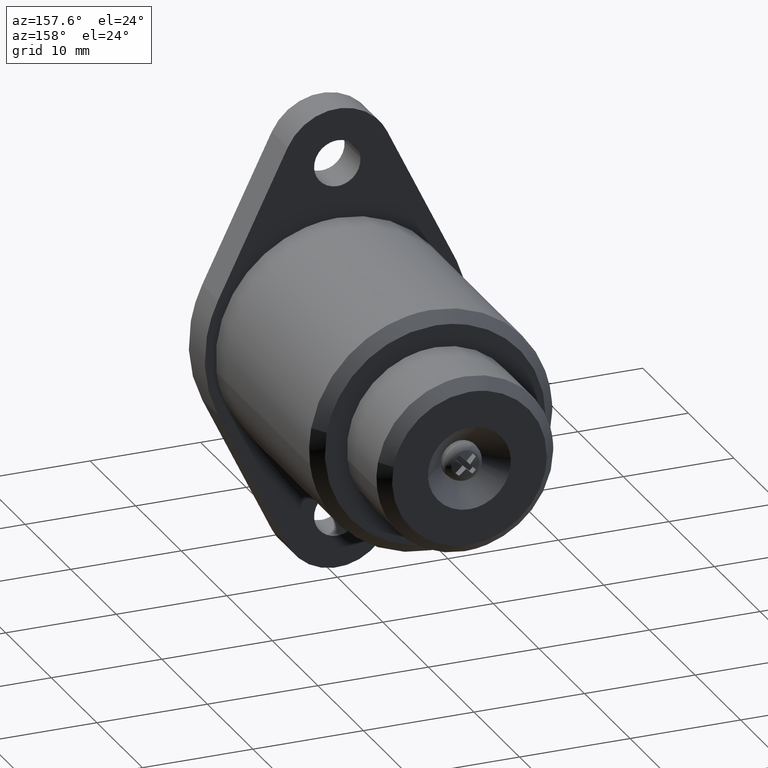
[diagram: clean part render]
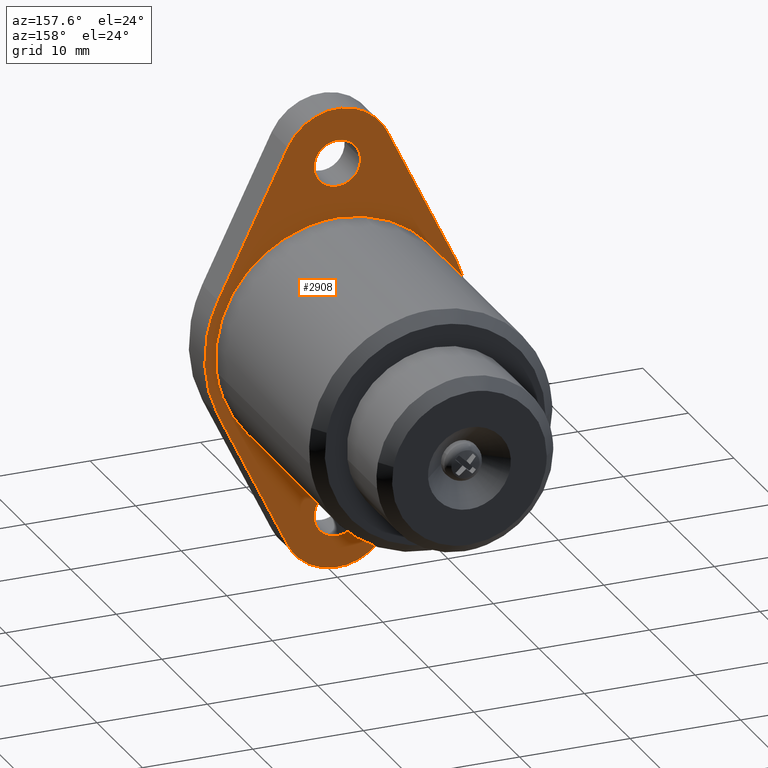
[diagram: same view with one face highlighted and labeled with its STEP entity id]
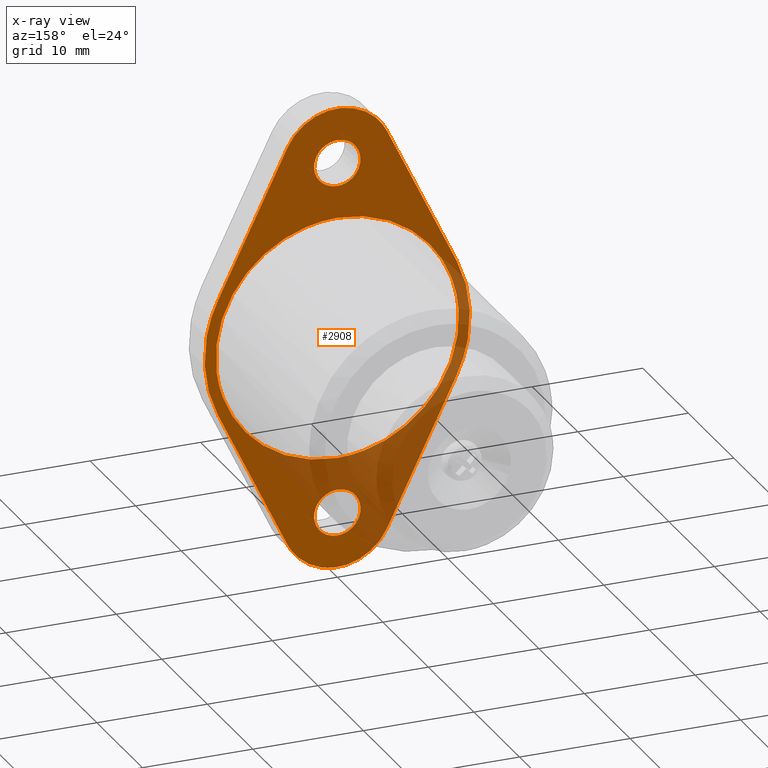
[diagram: x-ray of the same camera — body ghosted, the highlighted face saturated]
A machine part, auxiliary view. The second image highlights one B-rep face of the part: STEP entity #2908.
The next image is the same camera in x-ray: the body ghosted, the highlighted face saturated — about 30% of this face is hidden behind the body in this view.
In plain terms, the highlighted face is a freeform B-spline surface patch.
Its self-contained STEP definition (entity closure, byte-faithful):
#973=CARTESIAN_POINT('',(0.0,0.0,13.900010474177201));
#974=VERTEX_POINT('',#973);
#975=CARTESIAN_POINT('',(2.093526400831510,1.942890E-016,15.835246373046340));
#976=VERTEX_POINT('',#975);
#977=CARTESIAN_POINT('',(0.0,0.0,13.900010474177201));
#978=CARTESIAN_POINT('',(1.941220032291775,0.0,13.900010474177209));
#979=CARTESIAN_POINT('',(2.093526400831510,1.942890E-016,15.835246373046340));
#987=(BOUNDED_CURVE()B_SPLINE_CURVE(2,(#977,#978,#979),.UNSPECIFIED.,.F.,.U.)B_SPLINE_CURVE_WITH_KNOTS((3,3),(0.0,0.236331300616000),.UNSPECIFIED.)CURVE()GEOMETRIC_REPRESENTATION_ITEM()RATIONAL_B_SPLINE_CURVE((1.0,0.723120658624841,0.969723356136823))REPRESENTATION_ITEM(''));
#988=EDGE_CURVE('',#974,#976,#987,.T.);
#990=CARTESIAN_POINT('',(-2.093526400831510,1.942890E-016,16.164774575308059));
#991=VERTEX_POINT('',#990);
#992=CARTESIAN_POINT('',(-2.093526400831511,1.942890E-016,16.164774575308059));
#993=CARTESIAN_POINT('',(-2.100000000000000,0.0,16.082519698996162));
#994=CARTESIAN_POINT('',(-2.100000000000000,0.0,16.000010474177198));
#995=CARTESIAN_POINT('',(-2.100000000000000,0.0,13.900010474177201));
#996=CARTESIAN_POINT('',(0.0,0.0,13.900010474177201));
#1004=(BOUNDED_CURVE()B_SPLINE_CURVE(2,(#992,#993,#994,#995,#996),.UNSPECIFIED.,.F.,.U.)B_SPLINE_CURVE_WITH_KNOTS((3,2,3),(0.736331300616000,0.750000000000000,1.0),.UNSPECIFIED.)CURVE()GEOMETRIC_REPRESENTATION_ITEM()RATIONAL_B_SPLINE_CURVE((0.969723356136824,0.983986122561707,1.0,0.707106781186548,1.0))REPRESENTATION_ITEM(''));
#1005=EDGE_CURVE('',#991,#974,#1004,.T.);
#1072=CARTESIAN_POINT('',(0.0,0.0,18.100010474177200));
#1073=VERTEX_POINT('',#1072);
#1074=CARTESIAN_POINT('',(2.093526400831511,1.942890E-016,15.835246373046337));
#1075=CARTESIAN_POINT('',(2.100000000000000,0.0,15.917501249358232));
#1076=CARTESIAN_POINT('',(2.100000000000000,0.0,16.000010474177198));
#1077=CARTESIAN_POINT('',(2.100000000000000,0.0,18.100010474177203));
#1078=CARTESIAN_POINT('',(0.0,0.0,18.100010474177200));
#1086=(BOUNDED_CURVE()B_SPLINE_CURVE(2,(#1074,#1075,#1076,#1077,#1078),.UNSPECIFIED.,.F.,.U.)B_SPLINE_CURVE_WITH_KNOTS((3,2,3),(0.236331300616000,0.250000000000000,0.500000000000000),.UNSPECIFIED.)CURVE()GEOMETRIC_REPRESENTATION_ITEM()RATIONAL_B_SPLINE_CURVE((0.969723356136824,0.983986122561707,1.0,0.707106781186548,1.0))REPRESENTATION_ITEM(''));
#1087=EDGE_CURVE('',#976,#1073,#1086,.T.);
#1121=CARTESIAN_POINT('',(0.0,0.0,18.100010474177200));
#1122=CARTESIAN_POINT('',(-1.941220032291773,0.0,18.100010474177203));
#1123=CARTESIAN_POINT('',(-2.093526400831511,1.942890E-016,16.164774575308059));
#1131=(BOUNDED_CURVE()B_SPLINE_CURVE(2,(#1121,#1122,#1123),.UNSPECIFIED.,.F.,.U.)B_SPLINE_CURVE_WITH_KNOTS((3,3),(0.500000000000000,0.736331300616000),.UNSPECIFIED.)CURVE()GEOMETRIC_REPRESENTATION_ITEM()RATIONAL_B_SPLINE_CURVE((1.0,0.723120658624841,0.969723356136823))REPRESENTATION_ITEM(''));
#1132=EDGE_CURVE('',#1073,#991,#1131,.T.);
#1155=CARTESIAN_POINT('',(0.0,0.0,-18.099989525822998));
#1156=VERTEX_POINT('',#1155);
#1157=CARTESIAN_POINT('',(2.093526400831510,1.942890E-016,-16.164753626953861));
#1158=VERTEX_POINT('',#1157);
#1159=CARTESIAN_POINT('',(0.0,0.0,-18.099989525822998));
#1160=CARTESIAN_POINT('',(1.941220032291773,0.0,-18.099989525822998));
#1161=CARTESIAN_POINT('',(2.093526400831511,1.942890E-016,-16.164753626953857));
#1169=(BOUNDED_CURVE()B_SPLINE_CURVE(2,(#1159,#1160,#1161),.UNSPECIFIED.,.F.,.U.)B_SPLINE_CURVE_WITH_KNOTS((3,3),(0.0,0.236331300616000),.UNSPECIFIED.)CURVE()GEOMETRIC_REPRESENTATION_ITEM()RATIONAL_B_SPLINE_CURVE((1.0,0.723120658624841,0.969723356136823))REPRESENTATION_ITEM(''));
#1170=EDGE_CURVE('',#1156,#1158,#1169,.T.);
#1172=CARTESIAN_POINT('',(-2.093526400831510,1.942890E-016,-15.835225424692140));
#1173=VERTEX_POINT('',#1172);
#1174=CARTESIAN_POINT('',(-2.093526400831511,1.942890E-016,-15.835225424692139));
#1175=CARTESIAN_POINT('',(-2.100000000000000,0.0,-15.917480301004035));
#1176=CARTESIAN_POINT('',(-2.100000000000000,0.0,-15.999989525823000));
#1177=CARTESIAN_POINT('',(-2.100000000000000,0.0,-18.099989525823005));
#1178=CARTESIAN_POINT('',(0.0,0.0,-18.099989525822998));
#1186=(BOUNDED_CURVE()B_SPLINE_CURVE(2,(#1174,#1175,#1176,#1177,#1178),.UNSPECIFIED.,.F.,.U.)B_SPLINE_CURVE_WITH_KNOTS((3,2,3),(0.736331300616000,0.750000000000000,1.0),.UNSPECIFIED.)CURVE()GEOMETRIC_REPRESENTATION_ITEM()RATIONAL_B_SPLINE_CURVE((0.969723356136824,0.983986122561707,1.0,0.707106781186548,1.0))REPRESENTATION_ITEM(''));
#1187=EDGE_CURVE('',#1173,#1156,#1186,.T.);
#1254=CARTESIAN_POINT('',(0.0,0.0,-13.899989525823001));
#1255=VERTEX_POINT('',#1254);
#1256=CARTESIAN_POINT('',(2.093526400831511,1.942890E-016,-16.164753626953857));
#1257=CARTESIAN_POINT('',(2.100000000000000,0.0,-16.082498750641967));
#1258=CARTESIAN_POINT('',(2.100000000000000,0.0,-15.999989525823000));
#1259=CARTESIAN_POINT('',(2.100000000000000,0.0,-13.899989525822999));
#1260=CARTESIAN_POINT('',(0.0,0.0,-13.899989525823001));
#1268=(BOUNDED_CURVE()B_SPLINE_CURVE(2,(#1256,#1257,#1258,#1259,#1260),.UNSPECIFIED.,.F.,.U.)B_SPLINE_CURVE_WITH_KNOTS((3,2,3),(0.236331300616000,0.250000000000000,0.500000000000000),.UNSPECIFIED.)CURVE()GEOMETRIC_REPRESENTATION_ITEM()RATIONAL_B_SPLINE_CURVE((0.969723356136823,0.983986122561707,1.0,0.707106781186548,1.0))REPRESENTATION_ITEM(''));
#1269=EDGE_CURVE('',#1158,#1255,#1268,.T.);
#1303=CARTESIAN_POINT('',(0.0,0.0,-13.899989525823001));
#1304=CARTESIAN_POINT('',(-1.941220032291773,0.0,-13.899989525823003));
#1305=CARTESIAN_POINT('',(-2.093526400831511,1.942890E-016,-15.835225424692135));
#1313=(BOUNDED_CURVE()B_SPLINE_CURVE(2,(#1303,#1304,#1305),.UNSPECIFIED.,.F.,.U.)B_SPLINE_CURVE_WITH_KNOTS((3,3),(0.500000000000000,0.736331300616000),.UNSPECIFIED.)CURVE()GEOMETRIC_REPRESENTATION_ITEM()RATIONAL_B_SPLINE_CURVE((1.0,0.723120658624841,0.969723356136823))REPRESENTATION_ITEM(''));
#1314=EDGE_CURVE('',#1255,#1173,#1313,.T.);
#1905=CARTESIAN_POINT('',(10.923088550968760,-2.402156E-014,-1.298350099039061));
#1906=VERTEX_POINT('',#1905);
#1907=CARTESIAN_POINT('',(-0.000018141802190,0.0,11.000010474177200));
#1908=VERTEX_POINT('',#1907);
#1909=CARTESIAN_POINT('',(10.923088550968760,-2.402156E-014,-1.298350099039061));
#1910=CARTESIAN_POINT('',(10.999981858197811,0.0,-0.651446753374219));
#1911=CARTESIAN_POINT('',(10.999981858197810,0.0,0.000010474177202));
#1912=CARTESIAN_POINT('',(10.999981858197808,0.0,11.000010474177202));
#1913=CARTESIAN_POINT('',(-0.000018141802190,0.0,11.000010474177200));
#1921=(BOUNDED_CURVE()B_SPLINE_CURVE(2,(#1909,#1910,#1911,#1912,#1913),.UNSPECIFIED.,.F.,.U.)B_SPLINE_CURVE_WITH_KNOTS((3,2,3),(0.729562721192991,0.750000000000000,1.0),.UNSPECIFIED.)CURVE()GEOMETRIC_REPRESENTATION_ITEM()RATIONAL_B_SPLINE_CURVE((0.956027239646196,0.976056238505709,1.0,0.707106781186548,1.0))REPRESENTATION_ITEM(''));
#1922=EDGE_CURVE('',#1906,#1908,#1921,.T.);
#1932=CARTESIAN_POINT('',(-10.979501933485819,-3.114176E-014,0.671527910945007));
#1933=VERTEX_POINT('',#1932);
#1939=CARTESIAN_POINT('',(-0.000018141802190,0.0,11.000010474177200));
#1940=CARTESIAN_POINT('',(-10.347800455709654,0.0,11.000010474177202));
#1941=CARTESIAN_POINT('',(-10.979501933485821,-3.114176E-014,0.671527910945007));
#1949=(BOUNDED_CURVE()B_SPLINE_CURVE(2,(#1939,#1940,#1941),.UNSPECIFIED.,.F.,.U.)B_SPLINE_CURVE_WITH_KNOTS((3,3),(0.0,0.239333221516243),.UNSPECIFIED.)CURVE()GEOMETRIC_REPRESENTATION_ITEM()RATIONAL_B_SPLINE_CURVE((1.0,0.719603689524458,0.976072597347958))REPRESENTATION_ITEM(''));
#1950=EDGE_CURVE('',#1908,#1933,#1949,.T.);
#1977=CARTESIAN_POINT('',(-0.000018141802190,0.0,-10.999989525822800));
#1978=VERTEX_POINT('',#1977);
#1979=CARTESIAN_POINT('',(-0.000018141802190,0.0,-10.999989525822800));
#1980=CARTESIAN_POINT('',(9.769916062458439,0.0,-10.999989525822796));
#1981=CARTESIAN_POINT('',(10.923088550968760,-2.402156E-014,-1.298350099039061));
#1989=(BOUNDED_CURVE()B_SPLINE_CURVE(2,(#1979,#1980,#1981),.UNSPECIFIED.,.F.,.U.)B_SPLINE_CURVE_WITH_KNOTS((3,3),(0.500000000000000,0.729562721192991),.UNSPECIFIED.)CURVE()GEOMETRIC_REPRESENTATION_ITEM()RATIONAL_B_SPLINE_CURVE((1.0,0.731050542680839,0.956027239646196))REPRESENTATION_ITEM(''));
#1990=EDGE_CURVE('',#1978,#1906,#1989,.T.);
#1992=CARTESIAN_POINT('',(-10.979501933485821,-3.114176E-014,0.671527910945007));
#1993=CARTESIAN_POINT('',(-11.000018141802192,0.0,0.336082598275263));
#1994=CARTESIAN_POINT('',(-11.000018141802190,0.0,0.000010474177202));
#1995=CARTESIAN_POINT('',(-11.000018141802190,0.0,-10.999989525822796));
#1996=CARTESIAN_POINT('',(-0.000018141802190,0.0,-10.999989525822800));
#2004=(BOUNDED_CURVE()B_SPLINE_CURVE(2,(#1992,#1993,#1994,#1995,#1996),.UNSPECIFIED.,.F.,.U.)B_SPLINE_CURVE_WITH_KNOTS((3,2,3),(0.239333221516243,0.250000000000000,0.500000000000000),.UNSPECIFIED.)CURVE()GEOMETRIC_REPRESENTATION_ITEM()RATIONAL_B_SPLINE_CURVE((0.976072597347958,0.987503091662090,1.0,0.707106781186548,1.0))REPRESENTATION_ITEM(''));
#2005=EDGE_CURVE('',#1933,#1978,#2004,.T.);
#2791=CARTESIAN_POINT('',(-13.198799948659721,0.0,-23.097886372787670));
#2792=CARTESIAN_POINT('',(13.198800596984020,0.0,-23.097886372787670));
#2793=CARTESIAN_POINT('',(-13.198799948659721,0.0,23.097908226183140));
#2794=CARTESIAN_POINT('',(13.198800596984020,0.0,23.097908226183140));
#2795=B_SPLINE_SURFACE_WITH_KNOTS('',1,1,((#2791,#2793),(#2792,#2794)),.UNSPECIFIED.,.F.,.F.,.U.,(2,2),(2,2),(0.0,26.397600545643741),(0.0,46.195794598970807),.UNSPECIFIED.);
#2796=CARTESIAN_POINT('',(10.787798958201421,0.0,5.255806668611340));
#2797=VERTEX_POINT('',#2796);
#2798=CARTESIAN_POINT('',(4.496091968056815,0.0,18.187510648982901));
#2799=VERTEX_POINT('',#2798);
#2800=CARTESIAN_POINT('',(10.787798958201421,0.0,5.255806668611340));
#2801=CARTESIAN_POINT('',(4.496091968056815,0.0,18.187510648982901));
#2802=QUASI_UNIFORM_CURVE('',1,(#2800,#2801),.UNSPECIFIED.,.F.,.U.);
#2803=EDGE_CURVE('',#2797,#2799,#2802,.T.);
#2804=ORIENTED_EDGE('',*,*,#2803,.F.);
#2805=CARTESIAN_POINT('',(10.787798958201421,0.0,-5.255785720256941));
#2806=VERTEX_POINT('',#2805);
#2807=CARTESIAN_POINT('',(10.787798958201421,0.0,-5.255785720256941));
#2808=CARTESIAN_POINT('',(13.348413384226454,0.0,0.000010474177197));
#2809=CARTESIAN_POINT('',(10.787798958201421,0.0,5.255806668611339));
#2817=(BOUNDED_CURVE()B_SPLINE_CURVE(2,(#2807,#2808,#2809),.UNSPECIFIED.,.F.,.U.)CURVE()GEOMETRIC_REPRESENTATION_ITEM()QUASI_UNIFORM_CURVE()RATIONAL_B_SPLINE_CURVE((1.0,0.898983246516785,1.0))REPRESENTATION_ITEM(''));
#2818=EDGE_CURVE('',#2806,#2797,#2817,.T.);
#2819=ORIENTED_EDGE('',*,*,#2818,.F.);
#2820=CARTESIAN_POINT('',(4.496091968056811,0.0,-18.187489700628699));
#2821=VERTEX_POINT('',#2820);
#2822=CARTESIAN_POINT('',(4.496091968056811,0.0,-18.187489700628699));
#2823=CARTESIAN_POINT('',(10.787798958201421,0.0,-5.255785720256941));
#2824=QUASI_UNIFORM_CURVE('',1,(#2822,#2823),.UNSPECIFIED.,.F.,.U.);
#2825=EDGE_CURVE('',#2821,#2806,#2824,.T.);
#2826=ORIENTED_EDGE('',*,*,#2825,.F.);
#2827=CARTESIAN_POINT('',(-4.500998218868420,0.0,-18.177376729271948));
#2828=VERTEX_POINT('',#2827);
#2829=CARTESIAN_POINT('',(-4.500998218868427,0.0,-18.177376729271948));
#2830=CARTESIAN_POINT('',(-3.137245260664916,0.0,-20.996466336360509));
#2831=CARTESIAN_POINT('',(-0.005620130930169,0.0,-20.999986367234840));
#2832=CARTESIAN_POINT('',(3.126004998804582,0.0,-21.003506398109160));
#2833=CARTESIAN_POINT('',(4.496091968056818,0.0,-18.187489700628699));
#2841=(BOUNDED_CURVE()B_SPLINE_CURVE(2,(#2829,#2830,#2831,#2832,#2833),.UNSPECIFIED.,.F.,.U.)B_SPLINE_CURVE_WITH_KNOTS((3,2,3),(0.0,0.500000000000000,1.0),.UNSPECIFIED.)CURVE()GEOMETRIC_REPRESENTATION_ITEM()RATIONAL_B_SPLINE_CURVE((1.0,0.847493071819255,1.0,0.847493071819255,1.0))REPRESENTATION_ITEM(''));
#2842=EDGE_CURVE('',#2828,#2821,#2841,.T.);
#2843=ORIENTED_EDGE('',*,*,#2842,.F.);
#2844=CARTESIAN_POINT('',(-10.790620998225720,0.0,-5.249989380360920));
#2845=VERTEX_POINT('',#2844);
#2846=CARTESIAN_POINT('',(-10.790620998225720,0.0,-5.249989380360920));
#2847=CARTESIAN_POINT('',(-4.500998218868420,0.0,-18.177376729271948));
#2848=QUASI_UNIFORM_CURVE('',1,(#2846,#2847),.UNSPECIFIED.,.F.,.U.);
#2849=EDGE_CURVE('',#2845,#2828,#2848,.T.);
#2850=ORIENTED_EDGE('',*,*,#2849,.F.);
#2851=CARTESIAN_POINT('',(-10.793442322338519,0.0,5.244207537060281));
#2852=VERTEX_POINT('',#2851);
#2853=CARTESIAN_POINT('',(-10.793442322338519,0.0,5.244207537060291));
#2854=CARTESIAN_POINT('',(-13.343177088879154,0.0,-0.003576787197686));
#2855=CARTESIAN_POINT('',(-10.790620998225711,0.0,-5.249989380360921));
#2863=(BOUNDED_CURVE()B_SPLINE_CURVE(2,(#2853,#2854,#2855),.UNSPECIFIED.,.F.,.U.)CURVE()GEOMETRIC_REPRESENTATION_ITEM()QUASI_UNIFORM_CURVE()RATIONAL_B_SPLINE_CURVE((1.0,0.899336004191385,1.0))REPRESENTATION_ITEM(''));
#2864=EDGE_CURVE('',#2852,#2845,#2863,.T.);
#2865=ORIENTED_EDGE('',*,*,#2864,.F.);
#2866=CARTESIAN_POINT('',(-4.496091968056815,0.0,18.187510648982901));
#2867=VERTEX_POINT('',#2866);
#2868=CARTESIAN_POINT('',(-4.496091968056815,0.0,18.187510648982901));
#2869=CARTESIAN_POINT('',(-10.793442322338519,0.0,5.244207537060281));
#2870=QUASI_UNIFORM_CURVE('',1,(#2868,#2869),.UNSPECIFIED.,.F.,.U.);
#2871=EDGE_CURVE('',#2867,#2852,#2870,.T.);
#2872=ORIENTED_EDGE('',*,*,#2871,.F.);
#2873=CARTESIAN_POINT('',(4.496091968056816,0.0,18.187510648982901));
#2874=CARTESIAN_POINT('',(3.127716075623161,0.0,21.000010474177206));
#2875=CARTESIAN_POINT('',(0.0,0.0,21.000010474177198));
#2876=CARTESIAN_POINT('',(-3.127716075623161,0.0,21.000010474177206));
#2877=CARTESIAN_POINT('',(-4.496091968056816,0.0,18.187510648982901));
#2885=(BOUNDED_CURVE()B_SPLINE_CURVE(2,(#2873,#2874,#2875,#2876,#2877),.UNSPECIFIED.,.F.,.U.)B_SPLINE_CURVE_WITH_KNOTS((3,2,3),(0.0,0.500000000000000,1.0),.UNSPECIFIED.)CURVE()GEOMETRIC_REPRESENTATION_ITEM()RATIONAL_B_SPLINE_CURVE((1.0,0.847791258200137,1.0,0.847791258200137,1.0))REPRESENTATION_ITEM(''));
#2886=EDGE_CURVE('',#2799,#2867,#2885,.T.);
#2887=ORIENTED_EDGE('',*,*,#2886,.F.);
#2888=EDGE_LOOP('',(#2804,#2819,#2826,#2843,#2850,#2865,#2872,#2887));
#2889=FACE_OUTER_BOUND('',#2888,.T.);
#2890=ORIENTED_EDGE('',*,*,#1950,.T.);
#2891=ORIENTED_EDGE('',*,*,#2005,.T.);
#2892=ORIENTED_EDGE('',*,*,#1990,.T.);
#2893=ORIENTED_EDGE('',*,*,#1922,.T.);
#2894=EDGE_LOOP('',(#2890,#2891,#2892,#2893));
#2895=FACE_BOUND('',#2894,.T.);
#2896=ORIENTED_EDGE('',*,*,#1314,.T.);
#2897=ORIENTED_EDGE('',*,*,#1187,.T.);
#2898=ORIENTED_EDGE('',*,*,#1170,.T.);
#2899=ORIENTED_EDGE('',*,*,#1269,.T.);
#2900=EDGE_LOOP('',(#2896,#2897,#2898,#2899));
#2901=FACE_BOUND('',#2900,.T.);
#2902=ORIENTED_EDGE('',*,*,#1132,.T.);
#2903=ORIENTED_EDGE('',*,*,#1005,.T.);
#2904=ORIENTED_EDGE('',*,*,#988,.T.);
#2905=ORIENTED_EDGE('',*,*,#1087,.T.);
#2906=EDGE_LOOP('',(#2902,#2903,#2904,#2905));
#2907=FACE_BOUND('',#2906,.T.);
#2908=ADVANCED_FACE('',(#2889,#2895,#2901,#2907),#2795,.F.);